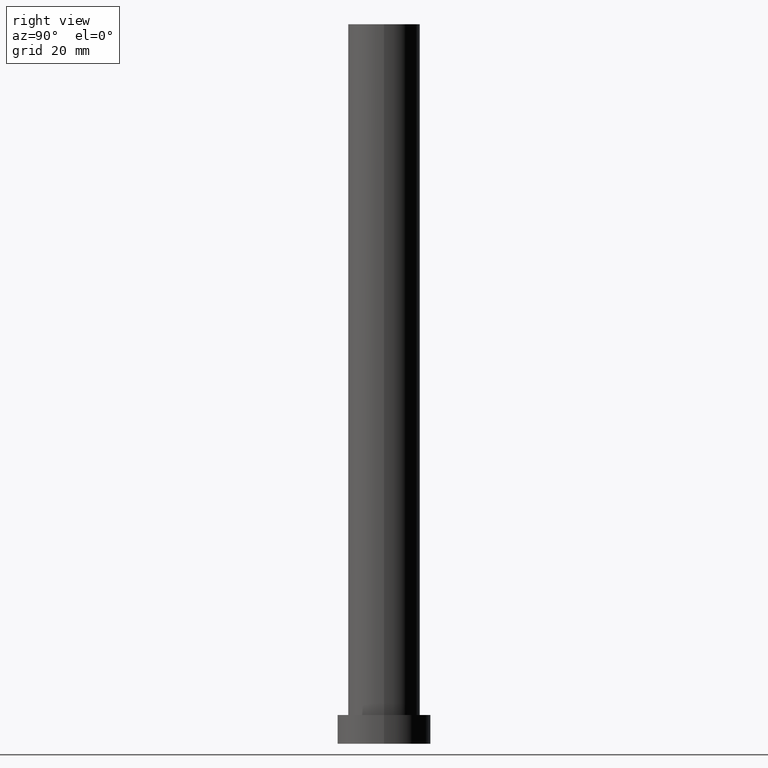
[diagram: clean part render]
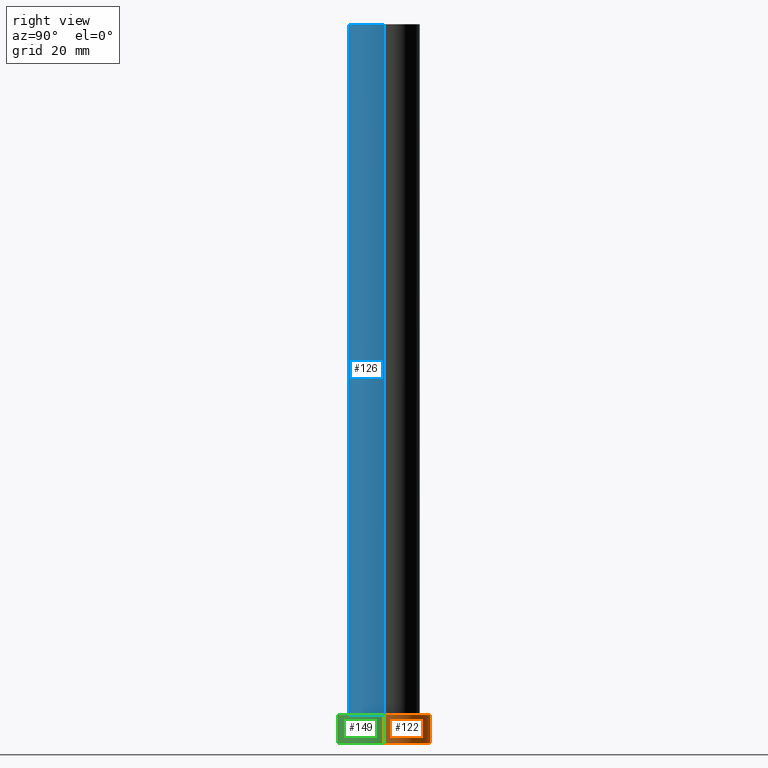
[diagram: same view with three faces highlighted in distinct colors, each labeled with its STEP entity id]
A machine part, right view with three faces highlighted in distinct colors.
Their STEP definitions:

[orange] entity #122 — the highlighted cylindrical surface (partial cylindrical patch) has radius 13 mm, axis along (-0, -0, -1).
#16 = CARTESIAN_POINT ( 'NONE',  ( 0.000000000000000000, 0.000000000000000000, 0.000000000000000000 ) ) ;
#19 = DIRECTION ( 'NONE',  ( 1.000000000000000000, 0.000000000000000000, 0.000000000000000000 ) ) ;
#20 = CARTESIAN_POINT ( 'NONE',  ( 0.000000000000000000, 0.000000000000000000, 8.000000000000000000 ) ) ;
#26 = CARTESIAN_POINT ( 'NONE',  ( 13.00000000000000178, 1.592040838891559293E-15, 0.000000000000000000 ) ) ;
#49 = VECTOR ( 'NONE', #174, 1000.000000000000000 ) ;
#53 = CARTESIAN_POINT ( 'NONE',  ( -13.00000000000000178, 0.000000000000000000, 8.000000000000000000 ) ) ;
#59 = AXIS2_PLACEMENT_3D ( 'NONE', #75, #151, #19 ) ;
#75 = CARTESIAN_POINT ( 'NONE',  ( 0.000000000000000000, 0.000000000000000000, 8.000000000000000000 ) ) ;
#76 = DIRECTION ( 'NONE',  ( -0.000000000000000000, -0.000000000000000000, -1.000000000000000000 ) ) ;
#85 = ORIENTED_EDGE ( 'NONE', *, *, #116, .T. ) ;
#88 = AXIS2_PLACEMENT_3D ( 'NONE', #16, #110, #91 ) ;
#91 = DIRECTION ( 'NONE',  ( 1.000000000000000000, 0.000000000000000000, 0.000000000000000000 ) ) ;
#95 = EDGE_CURVE ( 'NONE', #140, #105, #172, .T. ) ;
#100 = EDGE_CURVE ( 'NONE', #234, #105, #205, .T. ) ;
#105 = VERTEX_POINT ( 'NONE', #128 ) ;
#110 = DIRECTION ( 'NONE',  ( 0.000000000000000000, 0.000000000000000000, 1.000000000000000000 ) ) ;
#116 = EDGE_CURVE ( 'NONE', #146, #234, #155, .T. ) ;
#122 = ADVANCED_FACE ( 'NONE', ( #127 ), #240, .T. ) ;
#127 = FACE_OUTER_BOUND ( 'NONE', #191, .T. ) ;
#128 = CARTESIAN_POINT ( 'NONE',  ( -13.00000000000000178, 0.000000000000000000, 0.000000000000000000 ) ) ;
#138 = EDGE_CURVE ( 'NONE', #146, #140, #232, .T. ) ;
#140 = VERTEX_POINT ( 'NONE', #220 ) ;
#143 = ORIENTED_EDGE ( 'NONE', *, *, #138, .F. ) ;
#146 = VERTEX_POINT ( 'NONE', #252 ) ;
#147 = ORIENTED_EDGE ( 'NONE', *, *, #95, .F. ) ;
#151 = DIRECTION ( 'NONE',  ( 0.000000000000000000, 0.000000000000000000, 1.000000000000000000 ) ) ;
#155 = LINE ( 'NONE', #254, #49 ) ;
#156 = DIRECTION ( 'NONE',  ( -1.000000000000000000, 0.000000000000000000, 0.000000000000000000 ) ) ;
#167 = VECTOR ( 'NONE', #76, 1000.000000000000000 ) ;
#171 = AXIS2_PLACEMENT_3D ( 'NONE', #20, #176, #156 ) ;
#172 = LINE ( 'NONE', #53, #167 ) ;
#174 = DIRECTION ( 'NONE',  ( -0.000000000000000000, -0.000000000000000000, -1.000000000000000000 ) ) ;
#176 = DIRECTION ( 'NONE',  ( -0.000000000000000000, -0.000000000000000000, -1.000000000000000000 ) ) ;
#191 = EDGE_LOOP ( 'NONE', ( #143, #85, #228, #147 ) ) ;
#205 = CIRCLE ( 'NONE', #88, 13.00000000000000178 ) ;
#220 = CARTESIAN_POINT ( 'NONE',  ( -13.00000000000000178, 0.000000000000000000, 8.000000000000000000 ) ) ;
#228 = ORIENTED_EDGE ( 'NONE', *, *, #100, .T. ) ;
#232 = CIRCLE ( 'NONE', #59, 13.00000000000000178 ) ;
#234 = VERTEX_POINT ( 'NONE', #26 ) ;
#240 = CYLINDRICAL_SURFACE ( 'NONE', #171, 13.00000000000000178 ) ;
#252 = CARTESIAN_POINT ( 'NONE',  ( 13.00000000000000178, 1.592040838891559293E-15, 8.000000000000000000 ) ) ;
#254 = CARTESIAN_POINT ( 'NONE',  ( 13.00000000000000178, 1.592040838891559293E-15, 8.000000000000000000 ) ) ;

[blue] entity #126 — the highlighted cylindrical surface (edge-blend (fillet) strip) has radius 10 mm, axis along (-0, -0, -1).
#1 = CARTESIAN_POINT ( 'NONE',  ( 10.00000000000000000, 1.224646799147353256E-15, 8.000000000000000000 ) ) ;
#12 = DIRECTION ( 'NONE',  ( 1.000000000000000000, 0.000000000000000000, 0.000000000000000000 ) ) ;
#22 = CARTESIAN_POINT ( 'NONE',  ( 0.000000000000000000, 0.000000000000000000, 200.0000000000000000 ) ) ;
#29 = EDGE_LOOP ( 'NONE', ( #62, #121, #214, #211 ) ) ;
#31 = VERTEX_POINT ( 'NONE', #169 ) ;
#34 = LINE ( 'NONE', #170, #154 ) ;
#36 = DIRECTION ( 'NONE',  ( 0.000000000000000000, 0.000000000000000000, 1.000000000000000000 ) ) ;
#62 = ORIENTED_EDGE ( 'NONE', *, *, #113, .F. ) ;
#63 = EDGE_CURVE ( 'NONE', #164, #86, #242, .T. ) ;
#66 = VECTOR ( 'NONE', #194, 1000.000000000000000 ) ;
#77 = LINE ( 'NONE', #109, #66 ) ;
#84 = VERTEX_POINT ( 'NONE', #132 ) ;
#86 = VERTEX_POINT ( 'NONE', #1 ) ;
#92 = DIRECTION ( 'NONE',  ( -0.000000000000000000, -0.000000000000000000, -1.000000000000000000 ) ) ;
#93 = CYLINDRICAL_SURFACE ( 'NONE', #187, 10.00000000000000000 ) ;
#94 = CARTESIAN_POINT ( 'NONE',  ( -10.00000000000000000, 0.000000000000000000, 8.000000000000000000 ) ) ;
#101 = DIRECTION ( 'NONE',  ( 0.000000000000000000, 0.000000000000000000, 1.000000000000000000 ) ) ;
#109 = CARTESIAN_POINT ( 'NONE',  ( -10.00000000000000000, 0.000000000000000000, 200.0000000000000000 ) ) ;
#111 = FACE_OUTER_BOUND ( 'NONE', #29, .T. ) ;
#113 = EDGE_CURVE ( 'NONE', #31, #86, #34, .T. ) ;
#121 = ORIENTED_EDGE ( 'NONE', *, *, #161, .F. ) ;
#125 = CARTESIAN_POINT ( 'NONE',  ( 0.000000000000000000, 0.000000000000000000, 8.000000000000000000 ) ) ;
#126 = ADVANCED_FACE ( 'NONE', ( #111 ), #93, .T. ) ;
#132 = CARTESIAN_POINT ( 'NONE',  ( -10.00000000000000000, 0.000000000000000000, 200.0000000000000000 ) ) ;
#154 = VECTOR ( 'NONE', #92, 1000.000000000000000 ) ;
#161 = EDGE_CURVE ( 'NONE', #84, #31, #221, .T. ) ;
#164 = VERTEX_POINT ( 'NONE', #94 ) ;
#169 = CARTESIAN_POINT ( 'NONE',  ( 10.00000000000000000, 1.224646799147353256E-15, 200.0000000000000000 ) ) ;
#170 = CARTESIAN_POINT ( 'NONE',  ( 10.00000000000000000, 1.224646799147353256E-15, 200.0000000000000000 ) ) ;
#187 = AXIS2_PLACEMENT_3D ( 'NONE', #22, #255, #195 ) ;
#194 = DIRECTION ( 'NONE',  ( -0.000000000000000000, -0.000000000000000000, -1.000000000000000000 ) ) ;
#195 = DIRECTION ( 'NONE',  ( -1.000000000000000000, 0.000000000000000000, 0.000000000000000000 ) ) ;
#204 = AXIS2_PLACEMENT_3D ( 'NONE', #236, #36, #238 ) ;
#211 = ORIENTED_EDGE ( 'NONE', *, *, #63, .T. ) ;
#212 = EDGE_CURVE ( 'NONE', #84, #164, #77, .T. ) ;
#214 = ORIENTED_EDGE ( 'NONE', *, *, #212, .T. ) ;
#221 = CIRCLE ( 'NONE', #204, 10.00000000000000000 ) ;
#236 = CARTESIAN_POINT ( 'NONE',  ( 0.000000000000000000, 0.000000000000000000, 200.0000000000000000 ) ) ;
#238 = DIRECTION ( 'NONE',  ( 1.000000000000000000, 0.000000000000000000, 0.000000000000000000 ) ) ;
#239 = AXIS2_PLACEMENT_3D ( 'NONE', #125, #101, #12 ) ;
#242 = CIRCLE ( 'NONE', #239, 10.00000000000000000 ) ;
#255 = DIRECTION ( 'NONE',  ( -0.000000000000000000, -0.000000000000000000, -1.000000000000000000 ) ) ;

[green] entity #149 — the highlighted cylindrical surface (partial cylindrical patch) has radius 13 mm, axis along (-0, -0, -1).
#26 = CARTESIAN_POINT ( 'NONE',  ( 13.00000000000000178, 1.592040838891559293E-15, 0.000000000000000000 ) ) ;
#33 = DIRECTION ( 'NONE',  ( -0.000000000000000000, -0.000000000000000000, -1.000000000000000000 ) ) ;
#35 = CYLINDRICAL_SURFACE ( 'NONE', #119, 13.00000000000000178 ) ;
#49 = VECTOR ( 'NONE', #174, 1000.000000000000000 ) ;
#53 = CARTESIAN_POINT ( 'NONE',  ( -13.00000000000000178, 0.000000000000000000, 8.000000000000000000 ) ) ;
#54 = DIRECTION ( 'NONE',  ( 0.000000000000000000, 0.000000000000000000, 1.000000000000000000 ) ) ;
#65 = ORIENTED_EDGE ( 'NONE', *, *, #179, .F. ) ;
#74 = CARTESIAN_POINT ( 'NONE',  ( 0.000000000000000000, 0.000000000000000000, 8.000000000000000000 ) ) ;
#76 = DIRECTION ( 'NONE',  ( -0.000000000000000000, -0.000000000000000000, -1.000000000000000000 ) ) ;
#89 = ORIENTED_EDGE ( 'NONE', *, *, #95, .T. ) ;
#95 = EDGE_CURVE ( 'NONE', #140, #105, #172, .T. ) ;
#98 = EDGE_CURVE ( 'NONE', #105, #234, #213, .T. ) ;
#105 = VERTEX_POINT ( 'NONE', #128 ) ;
#112 = DIRECTION ( 'NONE',  ( 0.000000000000000000, 0.000000000000000000, 1.000000000000000000 ) ) ;
#116 = EDGE_CURVE ( 'NONE', #146, #234, #155, .T. ) ;
#119 = AXIS2_PLACEMENT_3D ( 'NONE', #74, #33, #241 ) ;
#124 = AXIS2_PLACEMENT_3D ( 'NONE', #177, #54, #198 ) ;
#128 = CARTESIAN_POINT ( 'NONE',  ( -13.00000000000000178, 0.000000000000000000, 0.000000000000000000 ) ) ;
#140 = VERTEX_POINT ( 'NONE', #220 ) ;
#146 = VERTEX_POINT ( 'NONE', #252 ) ;
#149 = ADVANCED_FACE ( 'NONE', ( #150 ), #35, .T. ) ;
#150 = FACE_OUTER_BOUND ( 'NONE', #248, .T. ) ;
#155 = LINE ( 'NONE', #254, #49 ) ;
#167 = VECTOR ( 'NONE', #76, 1000.000000000000000 ) ;
#172 = LINE ( 'NONE', #53, #167 ) ;
#174 = DIRECTION ( 'NONE',  ( -0.000000000000000000, -0.000000000000000000, -1.000000000000000000 ) ) ;
#177 = CARTESIAN_POINT ( 'NONE',  ( 0.000000000000000000, 0.000000000000000000, 0.000000000000000000 ) ) ;
#179 = EDGE_CURVE ( 'NONE', #140, #146, #188, .T. ) ;
#188 = CIRCLE ( 'NONE', #225, 13.00000000000000178 ) ;
#189 = ORIENTED_EDGE ( 'NONE', *, *, #98, .T. ) ;
#190 = ORIENTED_EDGE ( 'NONE', *, *, #116, .F. ) ;
#198 = DIRECTION ( 'NONE',  ( 1.000000000000000000, 0.000000000000000000, 0.000000000000000000 ) ) ;
#213 = CIRCLE ( 'NONE', #124, 13.00000000000000178 ) ;
#219 = CARTESIAN_POINT ( 'NONE',  ( 0.000000000000000000, 0.000000000000000000, 8.000000000000000000 ) ) ;
#220 = CARTESIAN_POINT ( 'NONE',  ( -13.00000000000000178, 0.000000000000000000, 8.000000000000000000 ) ) ;
#225 = AXIS2_PLACEMENT_3D ( 'NONE', #219, #112, #235 ) ;
#234 = VERTEX_POINT ( 'NONE', #26 ) ;
#235 = DIRECTION ( 'NONE',  ( 1.000000000000000000, 0.000000000000000000, 0.000000000000000000 ) ) ;
#241 = DIRECTION ( 'NONE',  ( -1.000000000000000000, 0.000000000000000000, 0.000000000000000000 ) ) ;
#248 = EDGE_LOOP ( 'NONE', ( #190, #65, #89, #189 ) ) ;
#252 = CARTESIAN_POINT ( 'NONE',  ( 13.00000000000000178, 1.592040838891559293E-15, 8.000000000000000000 ) ) ;
#254 = CARTESIAN_POINT ( 'NONE',  ( 13.00000000000000178, 1.592040838891559293E-15, 8.000000000000000000 ) ) ;